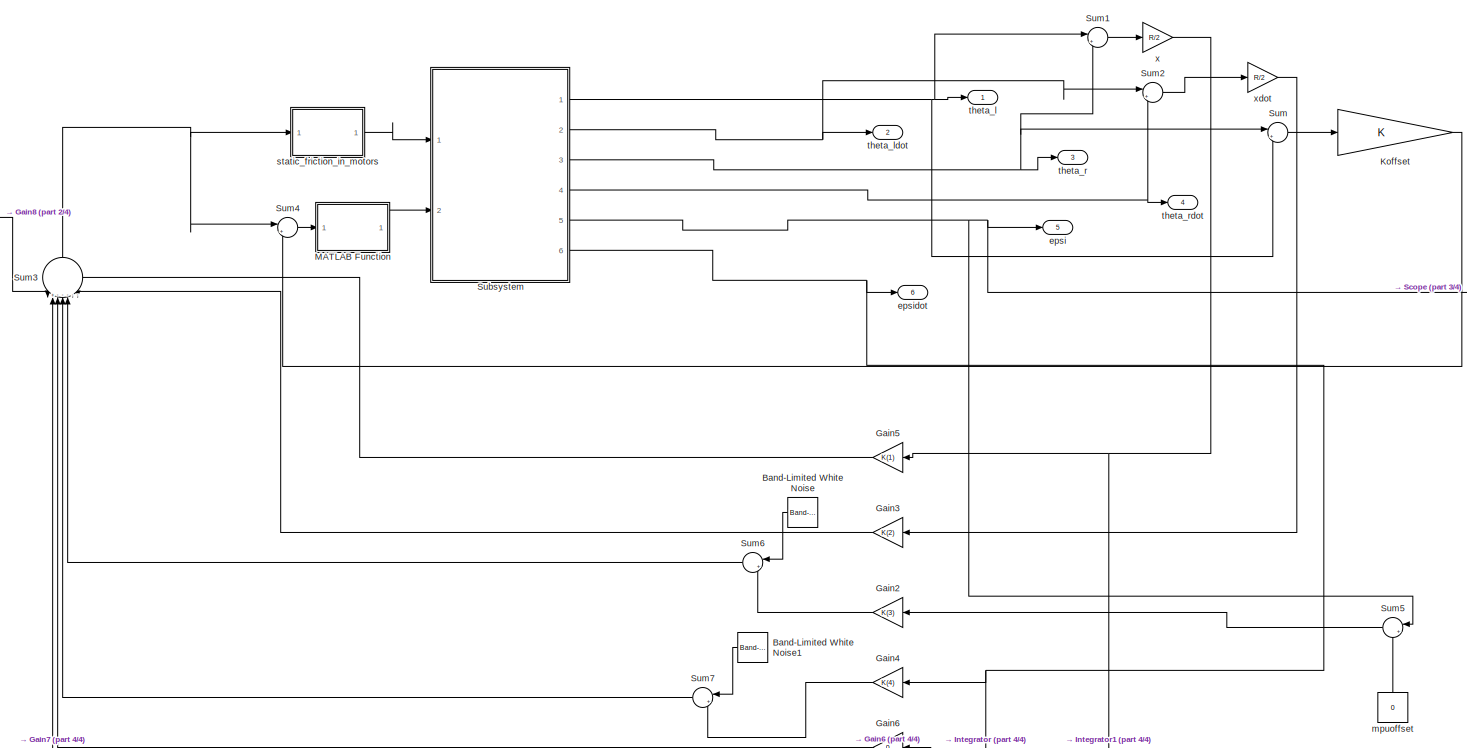
[diagram: root canvas - part 1/4, most of the canvas]
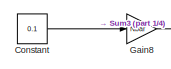
[diagram: root canvas - part 2/4, top left region]
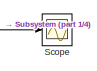
[diagram: root canvas - part 3/4, top right region]
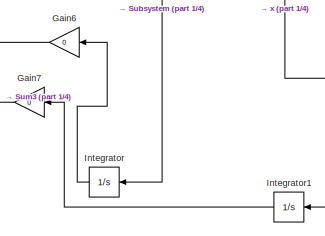
[diagram: root canvas - part 4/4, bottom center region]
MODEL slx_84c6b58b2f46
KIND model
CONFIG AbsTol = auto
CONFIG FixedStep = 0.00001
CONFIG MaxStep = auto
CONFIG MinStep = auto
CONFIG RelTol = 1e-3
CONFIG SampleTimeConstraint = Unconstrained
CONFIG Solver = ode3
CONFIG SolverMode = Auto
CONFIG SolverName = ode3
CONFIG StartTime = 0.0
CONFIG StopTime = 5
BLOCK [Reference] Band-Limited White Noise  REF=simulink/Sources/Band-Limited
White Noise
  Cov = [0.1]
  Ports = [0, 1]
  SourceBlock = simulink/Sources/Band-Limited\nWhite Noise
  SourceType = Band-Limited White Noise.
  Ts = 0.1
  VectorParams1D = on
  seed = [23341]
BLOCK [Reference] Band-Limited White Noise1  REF=simulink/Sources/Band-Limited
White Noise
  Cov = [0.1]
  Ports = [0, 1]
  SourceBlock = simulink/Sources/Band-Limited\nWhite Noise
  SourceType = Band-Limited White Noise.
  Ts = 0.1
  VectorParams1D = on
  seed = [23341]
BLOCK [Constant] Constant
  Value = 0.1
BLOCK [Gain] Gain2
  Gain = K(3)
  OutDataTypeStr = Inherit: Inherit via internal rule
  ParamDataTypeStr = Inherit: Inherit via internal rule
  SaturateOnIntegerOverflow = off
BLOCK [Gain] Gain3
  Gain = K(2)
  OutDataTypeStr = Inherit: Inherit via internal rule
  ParamDataTypeStr = Inherit: Inherit via internal rule
  SaturateOnIntegerOverflow = off
BLOCK [Gain] Gain4
  Gain = K(4)
  OutDataTypeStr = Inherit: Inherit via internal rule
  ParamDataTypeStr = Inherit: Inherit via internal rule
  SaturateOnIntegerOverflow = off
BLOCK [Gain] Gain5
  Gain = K(1)
  OutDataTypeStr = Inherit: Inherit via internal rule
  ParamDataTypeStr = Inherit: Inherit via internal rule
  SaturateOnIntegerOverflow = off
BLOCK [Gain] Gain6
  Gain = 0
  OutDataTypeStr = Inherit: Inherit via internal rule
  ParamDataTypeStr = Inherit: Inherit via internal rule
  SaturateOnIntegerOverflow = off
BLOCK [Gain] Gain7
  Gain = 0
  OutDataTypeStr = Inherit: Inherit via internal rule
  ParamDataTypeStr = Inherit: Inherit via internal rule
  SaturateOnIntegerOverflow = off
BLOCK [Gain] Gain8
  Gain = Nbar
  OutDataTypeStr = Inherit: Inherit via internal rule
  ParamDataTypeStr = Inherit: Inherit via internal rule
  SaturateOnIntegerOverflow = off
BLOCK [Integrator] Integrator
  Ports = [1, 1]
BLOCK [Integrator] Integrator1
  Ports = [1, 1]
BLOCK [Gain] Koffset
  OutDataTypeStr = Inherit: Inherit via internal rule
  ParamDataTypeStr = Inherit: Inherit via internal rule
  SaturateOnIntegerOverflow = off
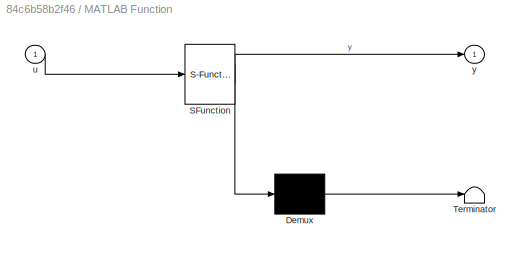
BLOCK [SubSystem] MATLAB Function
  ErrorFcn = Stateflow.Translate.translate
  PermitHierarchicalResolution = ExplicitOnly
  Ports = [1, 1]
  RequestExecContextInheritance = off
  SFBlockType = MATLAB Function
  TreatAsAtomicUnit = on
BLOCK [Demux] MATLAB Function/ Demux 
  Outputs = 1
  Ports = [1, 1]
BLOCK [S-Function] MATLAB Function/ SFunction 
  EnableBusSupport = on
  FunctionName = sf_sfun
  PortCounts = [1 2]
  Ports = [1, 2]
  Tag = Stateflow S-Function bignonlinearmodel 2
BLOCK [Terminator] MATLAB Function/ Terminator 
BLOCK [Inport] MATLAB Function/u
  IconDisplay = Port number
BLOCK [Outport] MATLAB Function/y
  IconDisplay = Port number
BLOCK [Scope] Scope
  Floating = off
  NumInputPorts = 1
  Ports = [1]
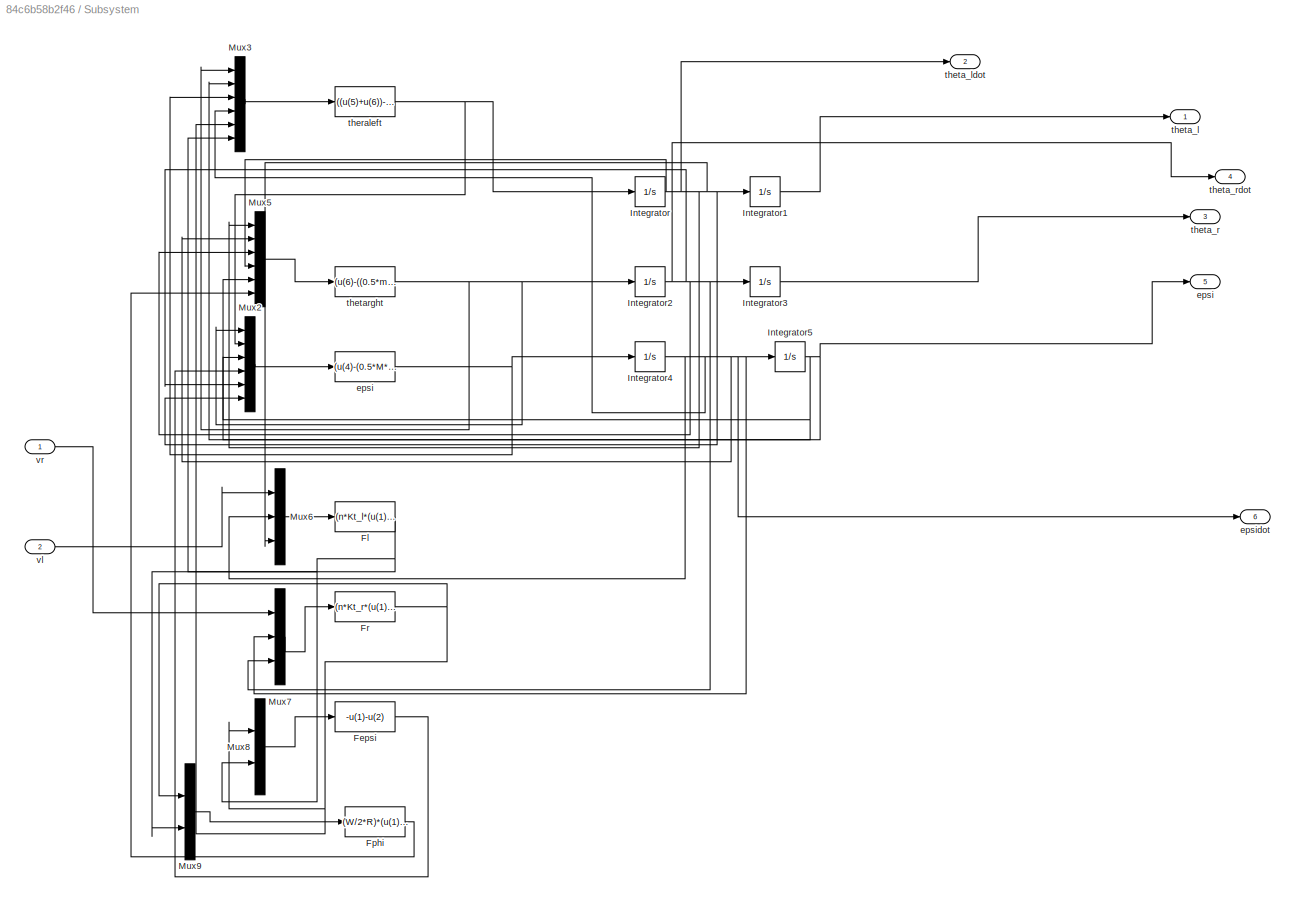
BLOCK [SubSystem] Subsystem
  Ports = [2, 6]
  RequestExecContextInheritance = off
BLOCK [Fcn] Subsystem/Fepsi
  Expr = -u(1)-u(2)
BLOCK [Fcn] Subsystem/Fl
  Expr = (n*Kt_l*(u(1)+Kb_l*(u(2)-u(3))*n))/R_a+fm_l*(u(2)-u(3))
BLOCK [Fcn] Subsystem/Fphi 
  Expr = (W/2*R)*(u(1)-u(2))
BLOCK [Fcn] Subsystem/Fr 
  Expr = (n*Kt_r*(u(1)+Kb_r*(u(2)-u(3))*n))/R_a+fm_r*(u(2)-u(3))
BLOCK [Integrator] Subsystem/Integrator
  Ports = [1, 1]
BLOCK [Integrator] Subsystem/Integrator1
  Ports = [1, 1]
BLOCK [Integrator] Subsystem/Integrator2
  Ports = [1, 1]
BLOCK [Integrator] Subsystem/Integrator3
  Ports = [1, 1]
BLOCK [Integrator] Subsystem/Integrator4
  Ports = [1, 1]
BLOCK [Integrator] Subsystem/Integrator5
  Ports = [1, 1]
BLOCK [Mux] Subsystem/Mux2
  DisplayOption = bar
  Inputs = 6
  Ports = [6, 1]
BLOCK [Mux] Subsystem/Mux3
  DisplayOption = bar
  Inputs = 6
  Ports = [6, 1]
BLOCK [Mux] Subsystem/Mux5
  DisplayOption = bar
  Inputs = 6
  Ports = [6, 1]
BLOCK [Mux] Subsystem/Mux6
  DisplayOption = bar
  Inputs = 3
  Ports = [3, 1]
BLOCK [Mux] Subsystem/Mux7
  DisplayOption = bar
  Inputs = 3
  Ports = [3, 1]
BLOCK [Mux] Subsystem/Mux8
  DisplayOption = bar
  Inputs = 2
  Ports = [2, 1]
BLOCK [Mux] Subsystem/Mux9
  DisplayOption = bar
  Inputs = 2
  Ports = [2, 1]
BLOCK [Fcn] Subsystem/epsi
  Expr = (u(4)-(0.5*M*L*R*cos(u(3))*(u(1)+u(2))-M*g*L*sin(u(3))-M*(L^2)*((R/W)*(u(5)-u(6)))^2*sin(u(3))*cos(u(3))))/(M*L^2+J_eps)
BLOCK [Outport] Subsystem/epsi 
  IconDisplay = Port number
  Port = 5
BLOCK [Outport] Subsystem/epsidot 
  IconDisplay = Port number
  Port = 6
BLOCK [Fcn] Subsystem/theraleft 
  Expr = ((u(5)+u(6))-(u(1)*0.5*(2*m+M)*(R^2)+Jw_r*u(1)+(M*L*R*cos(u(2)))*u(3)-M*L*R*u(4)^2*sin(u(2))))/(Jw_l+0.5*(2*m+M)*R^2);
BLOCK [Outport] Subsystem/theta_l 
  IconDisplay = Port number
BLOCK [Outport] Subsystem/theta_ldot 
  IconDisplay = Port number
  Port = 2
BLOCK [Outport] Subsystem/theta_r 
  IconDisplay = Port number
  Port = 3
BLOCK [Outport] Subsystem/theta_rdot 
  IconDisplay = Port number
  Port = 4
BLOCK [Fcn] Subsystem/thetarght
  Expr = (u(6)-((0.5*m*W^2+J_phi+M*(L^2)*sin(u(5))^2)*(R/W)*-u(1)-(W/2*R)*Jw_l*u(1)+2*M*L^2*u(2)*(R/W)*(u(3)-u(4))*sin(u(5))*cos(u(5))))/((W/(2*R))*Jw_r+(R/W)*(0.5*m*W^2+J_phi+M*(L^2)*sin(u(5))^2))
BLOCK [Inport] Subsystem/vl 
  IconDisplay = Port number
  Port = 2
BLOCK [Inport] Subsystem/vr
  IconDisplay = Port number
BLOCK [Sum] Sum
  IconShape = round
  InputSameDT = off
  Inputs = |+-
  OutDataTypeStr = Inherit: Inherit via internal rule
  Ports = [2, 1]
  SaturateOnIntegerOverflow = off
BLOCK [Sum] Sum1
  IconShape = round
  InputSameDT = off
  Inputs = |++
  OutDataTypeStr = Inherit: Inherit via internal rule
  Ports = [2, 1]
  SaturateOnIntegerOverflow = off
BLOCK [Sum] Sum2
  IconShape = round
  InputSameDT = off
  Inputs = |++
  OutDataTypeStr = Inherit: Inherit via internal rule
  Ports = [2, 1]
  SaturateOnIntegerOverflow = off
BLOCK [Sum] Sum3
  IconShape = round
  InputSameDT = off
  Inputs = |+------
  OutDataTypeStr = Inherit: Inherit via internal rule
  Ports = [7, 1]
  SaturateOnIntegerOverflow = off
BLOCK [Sum] Sum4
  IconShape = round
  InputSameDT = off
  Inputs = |++
  OutDataTypeStr = Inherit: Inherit via internal rule
  Ports = [2, 1]
  SaturateOnIntegerOverflow = off
BLOCK [Sum] Sum5
  IconShape = round
  InputSameDT = off
  Inputs = |+-
  OutDataTypeStr = Inherit: Inherit via internal rule
  Ports = [2, 1]
  SaturateOnIntegerOverflow = off
BLOCK [Sum] Sum6
  IconShape = round
  InputSameDT = off
  Inputs = |++
  OutDataTypeStr = Inherit: Inherit via internal rule
  Ports = [2, 1]
  SaturateOnIntegerOverflow = off
BLOCK [Sum] Sum7
  IconShape = round
  InputSameDT = off
  Inputs = |++
  OutDataTypeStr = Inherit: Inherit via internal rule
  Ports = [2, 1]
  SaturateOnIntegerOverflow = off
BLOCK [Outport] epsi 
  IconDisplay = Port number
  Port = 5
BLOCK [Outport] epsidot 
  IconDisplay = Port number
  Port = 6
BLOCK [Constant] mpuoffset 
  Value = 0
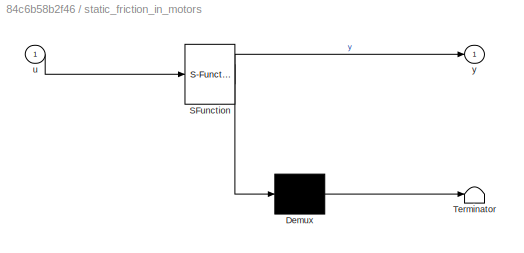
BLOCK [SubSystem] static_friction_in_motors
  ErrorFcn = Stateflow.Translate.translate
  PermitHierarchicalResolution = ExplicitOnly
  Ports = [1, 1]
  RequestExecContextInheritance = off
  SFBlockType = MATLAB Function
  TreatAsAtomicUnit = on
BLOCK [Demux] static_friction_in_motors/ Demux 
  Outputs = 1
  Ports = [1, 1]
BLOCK [S-Function] static_friction_in_motors/ SFunction 
  EnableBusSupport = on
  FunctionName = sf_sfun
  PortCounts = [1 2]
  Ports = [1, 2]
  Tag = Stateflow S-Function bignonlinearmodel 1
BLOCK [Terminator] static_friction_in_motors/ Terminator 
BLOCK [Inport] static_friction_in_motors/u
  IconDisplay = Port number
BLOCK [Outport] static_friction_in_motors/y
  IconDisplay = Port number
BLOCK [Outport] theta_l 
  IconDisplay = Port number
BLOCK [Outport] theta_ldot 
  IconDisplay = Port number
  Port = 2
BLOCK [Outport] theta_r 
  IconDisplay = Port number
  Port = 3
BLOCK [Outport] theta_rdot 
  IconDisplay = Port number
  Port = 4
BLOCK [Gain] x
  Gain = R/2
  OutDataTypeStr = Inherit: Inherit via internal rule
  ParamDataTypeStr = Inherit: Inherit via internal rule
  SaturateOnIntegerOverflow = off
BLOCK [Gain] xdot
  Gain = R/2
  OutDataTypeStr = Inherit: Inherit via internal rule
  ParamDataTypeStr = Inherit: Inherit via internal rule
  SaturateOnIntegerOverflow = off
LINE Band-Limited White Noise1:1 -> Sum7:1
LINE Band-Limited White Noise:1 -> Sum6:1
LINE Constant:1 -> Gain8:1
LINE Gain2:1 -> Sum6:2
LINE Gain3:1 -> Sum3:6
LINE Gain4:1 -> Sum7:2
LINE Gain5:1 -> Sum3:7
LINE Gain6:1 -> Sum3:3
LINE Gain7:1 -> Sum3:2
LINE Gain8:1 -> Sum3:1
LINE Integrator1:1 -> Gain7:1
LINE Integrator:1 -> Gain6:1
LINE Koffset:1 -> Sum4:2
LINE MATLAB Function:1 -> Subsystem:2
LINE Subsystem/Fepsi:1 -> Subsystem/Mux2:4
NET Subsystem/Fl:1 -> Subsystem/Mux3:6, Subsystem/Mux8:2, Subsystem/Mux9:2
LINE Subsystem/Fphi :1 -> Subsystem/Mux5:6
NET Subsystem/Fr :1 -> Subsystem/Mux3:5, Subsystem/Mux8:1, Subsystem/Mux9:1
LINE Subsystem/Integrator1:1 -> Subsystem/theta_l :1
NET Subsystem/Integrator2:1 -> Subsystem/Integrator3:1, Subsystem/Mux2:5, Subsystem/Mux5:3, Subsystem/Mux7:3, Subsystem/theta_rdot :1
LINE Subsystem/Integrator3:1 -> Subsystem/theta_r :1
NET Subsystem/Integrator4:1 -> Subsystem/Integrator5:1, Subsystem/Mux3:4, Subsystem/Mux5:2, Subsystem/Mux6:2, Subsystem/Mux7:2, Subsystem/epsidot :1
NET Subsystem/Integrator5:1 -> Subsystem/Mux2:3, Subsystem/Mux3:2, Subsystem/Mux5:5, Subsystem/epsi :1
NET Subsystem/Integrator:1 -> Subsystem/Integrator1:1, Subsystem/Mux2:6, Subsystem/Mux5:1, Subsystem/Mux5:4, Subsystem/Mux6:3, Subsystem/theta_ldot :1
LINE Subsystem/Mux2:1 -> Subsystem/epsi:1
LINE Subsystem/Mux3:1 -> Subsystem/theraleft :1
LINE Subsystem/Mux5:1 -> Subsystem/thetarght:1
LINE Subsystem/Mux6:1 -> Subsystem/Fl:1
LINE Subsystem/Mux7:1 -> Subsystem/Fr :1
LINE Subsystem/Mux8:1 -> Subsystem/Fepsi:1
LINE Subsystem/Mux9:1 -> Subsystem/Fphi :1
NET Subsystem/epsi:1 -> Subsystem/Integrator4:1, Subsystem/Mux3:3
NET Subsystem/theraleft :1 -> Subsystem/Integrator:1, Subsystem/Mux2:2
NET Subsystem/thetarght:1 -> Subsystem/Integrator2:1, Subsystem/Mux2:1, Subsystem/Mux3:1
LINE Subsystem/vl :1 -> Subsystem/Mux6:1
LINE Subsystem/vr:1 -> Subsystem/Mux7:1
NET Subsystem:1 -> Sum1:1, Sum:2, theta_l :1
NET Subsystem:2 -> Sum2:1, theta_ldot :1
NET Subsystem:3 -> Sum1:2, Sum:1, theta_r :1
NET Subsystem:4 -> Sum2:2, theta_rdot :1
NET Subsystem:5 -> Scope:1, Sum5:1, epsi :1
NET Subsystem:6 -> Gain4:1, Integrator:1, epsidot :1
LINE Sum1:1 -> x:1
LINE Sum2:1 -> xdot:1
NET Sum3:1 -> Sum4:1, static_friction_in_motors:1
LINE Sum4:1 -> MATLAB Function:1
LINE Sum5:1 -> Gain2:1
LINE Sum6:1 -> Sum3:5
LINE Sum7:1 -> Sum3:4
LINE Sum:1 -> Koffset:1
LINE mpuoffset :1 -> Sum5:2
LINE static_friction_in_motors:1 -> Subsystem:1
NET x:1 -> Gain5:1, Integrator1:1
LINE xdot:1 -> Gain3:1
note: NET lines group one-source signal fan-out (src -> all destinations, sorted); 1:1 wires keep LINE
CHART static_friction_in_motors states=1 transitions=1
  STATE_LABEL 'eML_blk_kernel()'
  STATE_LABEL 'SCRIPT:\nfunction y = fcn(u)\nif(abs(u)<1)\ny=0;\nelse\n    y=u;\nend\nend\n'
CHART MATLAB Function states=1 transitions=1
  STATE_LABEL 'eML_blk_kernel()'
  STATE_LABEL 'SCRIPT:\nfunction y = fcn(u)\nif(abs(u)<1)\ny=0;\nelse\n    y=u;\nend\nend\n'
